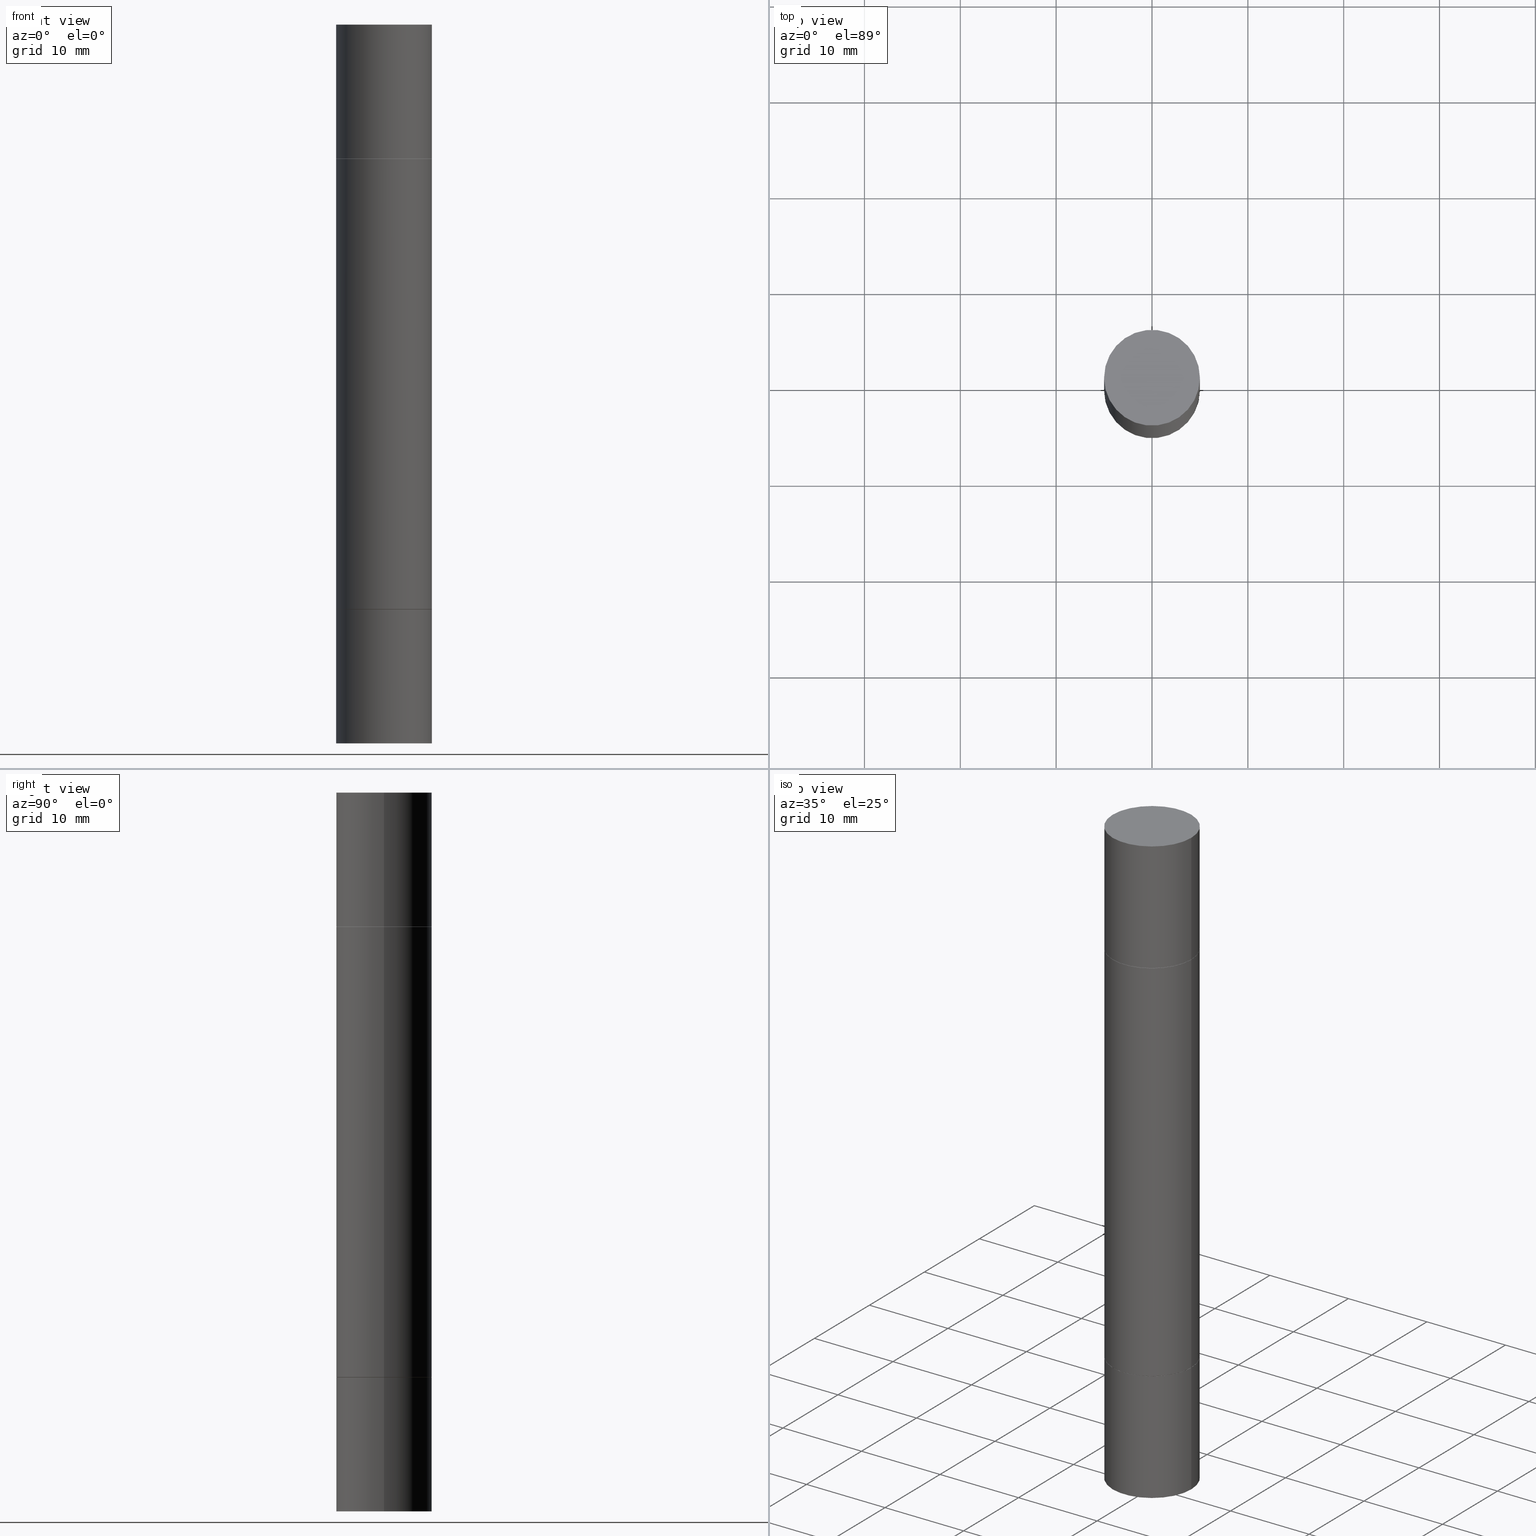
[diagram: canonical four-view strip — front | top / right | iso, engineering-drawing reading convention]
A machine part, canonical four-view strip (front | top / right | iso — engineering-drawing reading convention). The complete STEP part file that produces these views, byte-faithful:
ISO-10303-21;
HEADER;
FILE_DESCRIPTION (( 'STEP AP203' ),
    '1' );
FILE_NAME ('48939.STEP',
    '2024-03-04T15:49:58',
    ( '' ),
    ( '' ),
    'SwSTEP 2.0',
    'SolidWorks 2023',
    '' );
FILE_SCHEMA (( 'CONFIG_CONTROL_DESIGN' ));
ENDSEC;

DATA;
#1 = PERSON_AND_ORGANIZATION ( #326, #538 ) ;
#2 = CARTESIAN_POINT ( 'NONE',  ( -0.1968500000000000250, -3.804334017806689102E-15, -2.400599999999999401 ) ) ;
#3 = CIRCLE ( 'NONE', #662, 0.1958499999999999963 ) ;
#4 = CARTESIAN_POINT ( 'NONE',  ( 0.000000000000000000, 0.000000000000000000, 0.000000000000000000 ) ) ;
#5 = CC_DESIGN_APPROVAL ( #596, ( #411 ) ) ;
#6 = ORIENTED_EDGE ( 'NONE', *, *, #622, .F. ) ;
#7 = DIRECTION ( 'NONE',  ( 1.000000000000000000, -6.982962677686268288E-15, 0.000000000000000000 ) ) ;
#8 = EDGE_LOOP ( 'NONE', ( #426, #620, #380, #25 ) ) ;
#9 = ADVANCED_FACE ( 'NONE', ( #109 ), #433, .T. ) ;
#10 = ORIENTED_EDGE ( 'NONE', *, *, #574, .T. ) ;
#11 = CC_DESIGN_DATE_AND_TIME_ASSIGNMENT ( #98, #455, ( #108 ) ) ;
#12 = DIRECTION ( 'NONE',  ( 0.7071067811864267805, -2.468850131080992517E-15, 0.7071067811866682540 ) ) ;
#13 = VERTEX_POINT ( 'NONE', #647 ) ;
#14 = CARTESIAN_POINT ( 'NONE',  ( 0.1968500000000000250, -9.759737786468237294E-15, -2.401599999999999735 ) ) ;
#15 = CIRCLE ( 'NONE', #495, 0.1968500000000000250 ) ;
#16 = EDGE_LOOP ( 'NONE', ( #215, #457, #470, #19 ) ) ;
#17 = APPROVAL_PERSON_ORGANIZATION ( #1, #75, #44 ) ;
#18 = CARTESIAN_POINT ( 'NONE',  ( 5.873037884934223228E-29, -8.385141583365697263E-15, -2.401599999999999735 ) ) ;
#19 = ORIENTED_EDGE ( 'NONE', *, *, #303, .F. ) ;
#20 = PLANE ( 'NONE',  #473 ) ;
#21 = ORIENTED_EDGE ( 'NONE', *, *, #296, .T. ) ;
#22 = ORIENTED_EDGE ( 'NONE', *, *, #171, .T. ) ;
#23 = ORIENTED_EDGE ( 'NONE', *, *, #267, .F. ) ;
#24 = DIRECTION ( 'NONE',  ( 1.000000000000000000, -6.982962677686262766E-15, 0.000000000000000000 ) ) ;
#25 = ORIENTED_EDGE ( 'NONE', *, *, #365, .T. ) ;
#26 = CIRCLE ( 'NONE', #403, 0.1968500000000000250 ) ;
#27 = DIRECTION ( 'NONE',  ( 1.000000000000000000, -6.982962677686267499E-15, 0.000000000000000000 ) ) ;
#28 = ORIENTED_EDGE ( 'NONE', *, *, #613, .F. ) ;
#29 = PLANE ( 'NONE',  #315 ) ;
#30 = DIRECTION ( 'NONE',  ( -2.445468806185136597E-29, 3.491481338843145583E-15, 1.000000000000000000 ) ) ;
#31 = PLANE ( 'NONE',  #385 ) ;
#32 = ORIENTED_EDGE ( 'NONE', *, *, #242, .T. ) ;
#33 = DIRECTION ( 'NONE',  ( 2.445468806185136597E-29, 3.492890411551752677E-15, 1.000000000000000000 ) ) ;
#34 = CARTESIAN_POINT ( 'NONE',  ( 5.873037884934223228E-29, -1.923200839900334937E-15, -0.5511999999999992461 ) ) ;
#35 = CIRCLE ( 'NONE', #402, 0.1968500000000000250 ) ;
#36 = CC_DESIGN_APPROVAL ( #75, ( #48 ) ) ;
#37 = DIRECTION ( 'NONE',  ( 2.445468806185136597E-29, 3.492890411551752677E-15, 1.000000000000000000 ) ) ;
#38 = ADVANCED_FACE ( 'NONE', ( #476 ), #528, .T. ) ;
#39 = DIRECTION ( 'NONE',  ( -1.000000000000000000, 6.982962677686265922E-15, -9.839502134516470631E-33 ) ) ;
#40 = ORIENTED_EDGE ( 'NONE', *, *, #637, .T. ) ;
#41 = APPLICATION_PROTOCOL_DEFINITION ( 'international standard', 'config_control_design', 1994, #461 ) ;
#42 = CARTESIAN_POINT ( 'NONE',  ( -0.1968500000000000250, -5.762046994505618475E-16, -0.5521999999999996911 ) ) ;
#43 = PRODUCT_DEFINITION_SHAPE ( 'NONE', 'NONE',  #108 ) ;
#44 = APPROVAL_ROLE ( '' ) ;
#45 = CARTESIAN_POINT ( 'NONE',  ( 5.873037884934223228E-29, -1.923200839900334937E-15, -0.5511999999999992461 ) ) ;
#46 = VERTEX_POINT ( 'NONE', #259 ) ;
#47 = DIRECTION ( 'NONE',  ( -0.7071067811864267805, 7.493145998869918709E-15, 0.7071067811866682540 ) ) ;
#48 = PRODUCT_DEFINITION_FORMATION_WITH_SPECIFIED_SOURCE ( 'ANY', '', #554, .NOT_KNOWN. ) ;
#49 = CARTESIAN_POINT ( 'NONE',  ( 5.870592416128037625E-29, -8.381650102026854256E-15, -2.400599999999999401 ) ) ;
#50 = VERTEX_POINT ( 'NONE', #466 ) ;
#51 = CALENDAR_DATE ( 2024, 4, 3 ) ;
#52 = CARTESIAN_POINT ( 'NONE',  ( 0.1968499999999998307, -1.168632265538556411E-14, -2.952799999999998981 ) ) ;
#53 = VERTEX_POINT ( 'NONE', #310 ) ;
#54 = DIRECTION ( 'NONE',  ( 0.7071067811864267805, -7.407546758113824138E-15, -0.7071067811866682540 ) ) ;
#55 = CLOSED_SHELL ( 'NONE', ( #481, #464, #492, #432 ) ) ;
#56 = AXIS2_PLACEMENT_3D ( 'NONE', #639, #304, #207 ) ;
#57 = DIRECTION ( 'NONE',  ( -0.7071067811864267805, 2.381258160590016583E-15, -0.7071067811866682540 ) ) ;
#58 = DIRECTION ( 'NONE',  ( 1.000000000000000000, -6.982962677686267499E-15, 0.000000000000000000 ) ) ;
#59 = DIRECTION ( 'NONE',  ( 1.000000000000000000, -6.982962677686264344E-15, 0.000000000000000000 ) ) ;
#60 = CARTESIAN_POINT ( 'NONE',  ( 7.220980290903470182E-29, -1.030964609733603853E-14, -2.952799999999999869 ) ) ;
#61 = EDGE_LOOP ( 'NONE', ( #513, #22, #658, #649 ) ) ;
#62 = FACE_OUTER_BOUND ( 'NONE', #307, .T. ) ;
#63 = AXIS2_PLACEMENT_3D ( 'NONE', #133, #559, #499 ) ;
#64 = CARTESIAN_POINT ( 'NONE',  ( 0.000000000000000000, -1.031172645228302408E-14, -2.952799999999998981 ) ) ;
#65 = CIRCLE ( 'NONE', #421, 0.1968500000000000250 ) ;
#66 = DIRECTION ( 'NONE',  ( 1.000000000000000000, -6.982962677686262766E-15, 0.000000000000000000 ) ) ;
#67 = ORIENTED_EDGE ( 'NONE', *, *, #210, .T. ) ;
#68 = ORIENTED_EDGE ( 'NONE', *, *, #302, .F. ) ;
#69 = CARTESIAN_POINT ( 'NONE',  ( 0.000000000000000000, -1.031172645228302408E-14, -2.952799999999998981 ) ) ;
#70 = ORIENTED_EDGE ( 'NONE', *, *, #488, .T. ) ;
#71 = LINE ( 'NONE', #440, #245 ) ;
#72 = CARTESIAN_POINT ( 'NONE',  ( -0.1968500000000000250, -5.762046994505618475E-16, -0.5521999999999996911 ) ) ;
#73 = VECTOR ( 'NONE', #12, 39.37007874015748143 ) ;
#74 = AXIS2_PLACEMENT_3D ( 'NONE', #659, #279, #378 ) ;
#75 = APPROVAL ( #504, 'UNSPECIFIED' ) ;
#76 = CARTESIAN_POINT ( 'NONE',  ( 7.220980290903470182E-29, 2.080354946989631982E-18, 5.463695987328526437E-16 ) ) ;
#77 = DIRECTION ( 'NONE',  ( 2.438088387897959769E-29, 3.492890411551753071E-15, 1.000000000000000000 ) ) ;
#78 = VERTEX_POINT ( 'NONE', #262 ) ;
#79 = DIRECTION ( 'NONE',  ( 2.445468806185136597E-29, 3.492890411551752677E-15, 1.000000000000000000 ) ) ;
#80 = LINE ( 'NONE', #391, #291 ) ;
#81 = VERTEX_POINT ( 'NONE', #269 ) ;
#82 = DIRECTION ( 'NONE',  ( -2.445468806185136877E-29, -3.492890411551753071E-15, -1.000000000000000000 ) ) ;
#83 = EDGE_LOOP ( 'NONE', ( #40, #557 ) ) ;
#84 = CARTESIAN_POINT ( 'NONE',  ( 1.374596203102600181E-15, 0.1968499999999916150, -2.401600000000000623 ) ) ;
#85 = ADVANCED_FACE ( 'NONE', ( #240 ), #31, .F. ) ;
#86 = CIRCLE ( 'NONE', #63, 0.1968500000000000250 ) ;
#87 = LINE ( 'NONE', #555, #354 ) ;
#88 = DIRECTION ( 'NONE',  ( -2.445468806185136597E-29, -3.492890411551752677E-15, -1.000000000000000000 ) ) ;
#89 = CARTESIAN_POINT ( 'NONE',  ( 0.000000000000000000, 0.000000000000000000, 0.000000000000000000 ) ) ;
#90 = DIRECTION ( 'NONE',  ( 2.445468806185136597E-29, 3.492890411551752677E-15, 1.000000000000000000 ) ) ;
#91 = DIRECTION ( 'NONE',  ( 0.000000000000000000, 0.000000000000000000, 1.000000000000000000 ) ) ;
#92 = LINE ( 'NONE', #152, #441 ) ;
#93 = ORIENTED_EDGE ( 'NONE', *, *, #359, .T. ) ;
#94 = CIRCLE ( 'NONE', #212, 0.1968499999999998307 ) ;
#95 = PERSON_AND_ORGANIZATION ( #326, #538 ) ;
#96 = LOCAL_TIME ( 10, 49, 58.00000000000000000, #588 ) ;
#97 = CARTESIAN_POINT ( 'NONE',  ( 0.1968500000000000250, -1.372515848155552113E-15, 5.463695987328526437E-16 ) ) ;
#98 = DATE_AND_TIME ( #51, #317 ) ;
#99 = CARTESIAN_POINT ( 'NONE',  ( 0.000000000000000000, -1.031172645228302408E-14, -2.952799999999998981 ) ) ;
#100 = ADVANCED_FACE ( 'NONE', ( #280 ), #671, .T. ) ;
#101 = MECHANICAL_CONTEXT ( 'NONE', #472, 'mechanical' ) ;
#102 = LINE ( 'NONE', #142, #274 ) ;
#103 = AXIS2_PLACEMENT_3D ( 'NONE', #325, #130, #548 ) ;
#104 = CIRCLE ( 'NONE', #631, 0.1968500000000000250 ) ;
#105 = DIRECTION ( 'NONE',  ( 2.438088387897959769E-29, 3.492890411551753071E-15, 1.000000000000000000 ) ) ;
#106 = ORIENTED_EDGE ( 'NONE', *, *, #296, .F. ) ;
#107 = FACE_OUTER_BOUND ( 'NONE', #545, .T. ) ;
#108 = PRODUCT_DEFINITION ( 'UNKNOWN', '', #48, #182 ) ;
#109 = FACE_OUTER_BOUND ( 'NONE', #166, .T. ) ;
#110 = VERTEX_POINT ( 'NONE', #193 ) ;
#111 = DIRECTION ( 'NONE',  ( 2.438088387897959769E-29, 3.492890411551753071E-15, 1.000000000000000000 ) ) ;
#112 = ORIENTED_EDGE ( 'NONE', *, *, #531, .F. ) ;
#113 = VERTEX_POINT ( 'NONE', #448 ) ;
#114 = SHAPE_DEFINITION_REPRESENTATION ( #43, #364 ) ;
#115 = DIRECTION ( 'NONE',  ( 2.445468806185136597E-29, 3.492890411551752677E-15, 1.000000000000000000 ) ) ;
#116 = CIRCLE ( 'NONE', #284, 0.1968500000000000250 ) ;
#117 = VERTEX_POINT ( 'NONE', #42 ) ;
#118 = LOCAL_TIME ( 10, 49, 58.00000000000000000, #458 ) ;
#119 = ORIENTED_EDGE ( 'NONE', *, *, #624, .T. ) ;
#120 = CARTESIAN_POINT ( 'NONE',  ( 5.873037884934223228E-29, -8.385141583365697263E-15, -2.401599999999999735 ) ) ;
#121 = EDGE_LOOP ( 'NONE', ( #541, #170 ) ) ;
#122 = CARTESIAN_POINT ( 'NONE',  ( 7.220980290903470182E-29, -1.030964609733603853E-14, -2.952799999999999869 ) ) ;
#123 = DIRECTION ( 'NONE',  ( 2.438088387897959769E-29, 3.492890411551753071E-15, 1.000000000000000000 ) ) ;
#124 = CARTESIAN_POINT ( 'NONE',  ( 7.220980290903470182E-29, 2.080354946989631982E-18, 5.463695987328526437E-16 ) ) ;
#125 = DIRECTION ( 'NONE',  ( 1.000000000000000000, -6.982962677686265922E-15, 9.839502134516470631E-33 ) ) ;
#126 = CONICAL_SURFACE ( 'NONE', #616, 0.1958499999999999963, 0.7853981633972775267 ) ;
#127 = ORIENTED_EDGE ( 'NONE', *, *, #668, .F. ) ;
#128 = CIRCLE ( 'NONE', #196, 0.1958499999999999963 ) ;
#129 = DIRECTION ( 'NONE',  ( 1.000000000000000000, -6.982962677686267499E-15, 0.000000000000000000 ) ) ;
#130 = DIRECTION ( 'NONE',  ( 2.445468806185136597E-29, 3.492890411551752677E-15, 1.000000000000000000 ) ) ;
#131 = ORIENTED_EDGE ( 'NONE', *, *, #302, .T. ) ;
#132 = DIRECTION ( 'NONE',  ( -2.445468806185136597E-29, -3.492890411551752677E-15, -1.000000000000000000 ) ) ;
#133 = CARTESIAN_POINT ( 'NONE',  ( 5.870592416128037625E-29, -1.926693730311889446E-15, -0.5521999999999996911 ) ) ;
#134 = DIRECTION ( 'NONE',  ( -2.445468806185136877E-29, -3.492890411551753071E-15, -1.000000000000000000 ) ) ;
#135 = ADVANCED_FACE ( 'NONE', ( #185 ), #400, .T. ) ;
#136 = FACE_OUTER_BOUND ( 'NONE', #247, .T. ) ;
#137 = VECTOR ( 'NONE', #656, 39.37007874015748143 ) ;
#138 = LINE ( 'NONE', #501, #581 ) ;
#139 = CARTESIAN_POINT ( 'NONE',  ( 5.873037884934223228E-29, -8.385141583365697263E-15, -2.401599999999999735 ) ) ;
#140 = ADVANCED_FACE ( 'NONE', ( #231 ), #126, .T. ) ;
#141 = ORIENTED_EDGE ( 'NONE', *, *, #571, .F. ) ;
#142 = CARTESIAN_POINT ( 'NONE',  ( 0.1968500000000000250, -1.168632265538556569E-14, -2.952799999999998981 ) ) ;
#143 = ORIENTED_EDGE ( 'NONE', *, *, #227, .T. ) ;
#144 = CC_DESIGN_PERSON_AND_ORGANIZATION_ASSIGNMENT ( #399, #449, ( #411 ) ) ;
#145 = CALENDAR_DATE ( 2024, 4, 3 ) ;
#146 = DIRECTION ( 'NONE',  ( -2.445468806185136877E-29, -3.492890411551753071E-15, -1.000000000000000000 ) ) ;
#147 = ORIENTED_EDGE ( 'NONE', *, *, #171, .F. ) ;
#148 = ORIENTED_EDGE ( 'NONE', *, *, #229, .T. ) ;
#149 = CONICAL_SURFACE ( 'NONE', #328, 0.1958499999999999963, 0.7853981633972775267 ) ;
#150 = PERSON_AND_ORGANIZATION ( #326, #538 ) ;
#151 =( GEOMETRIC_REPRESENTATION_CONTEXT ( 3 ) GLOBAL_UNCERTAINTY_ASSIGNED_CONTEXT ( ( #503 ) ) GLOBAL_UNIT_ASSIGNED_CONTEXT ( ( #349, #507, #344 ) ) REPRESENTATION_CONTEXT ( 'NONE', 'WORKASPACE' ) );
#152 = CARTESIAN_POINT ( 'NONE',  ( -0.1958499999999999963, -5.795723070367805287E-16, -0.5511999999999992461 ) ) ;
#153 = FACE_OUTER_BOUND ( 'NONE', #594, .T. ) ;
#154 = EDGE_CURVE ( 'NONE', #46, #78, #301, .T. ) ;
#155 = CARTESIAN_POINT ( 'NONE',  ( 0.1968500000000000250, -1.168424230043858014E-14, -2.952799999999999869 ) ) ;
#156 = ADVANCED_FACE ( 'NONE', ( #657 ), #333, .T. ) ;
#157 = CLOSED_SHELL ( 'NONE', ( #655, #140, #339, #200, #386, #156 ) ) ;
#158 = AXIS2_PLACEMENT_3D ( 'NONE', #4, #408, #299 ) ;
#159 = FACE_OUTER_BOUND ( 'NONE', #314, .T. ) ;
#160 = AXIS2_PLACEMENT_3D ( 'NONE', #124, #664, #601 ) ;
#161 = ORIENTED_EDGE ( 'NONE', *, *, #424, .F. ) ;
#162 = DIRECTION ( 'NONE',  ( -2.445468806185136597E-29, 3.491481338843145583E-15, 1.000000000000000000 ) ) ;
#163 = VERTEX_POINT ( 'NONE', #72 ) ;
#164 = EDGE_LOOP ( 'NONE', ( #23, #188, #119, #68 ) ) ;
#165 = DIRECTION ( 'NONE',  ( 0.000000000000000000, 1.000000000000000000, -4.163344669033678790E-15 ) ) ;
#166 = EDGE_LOOP ( 'NONE', ( #638, #535, #266, #141 ) ) ;
#167 = CLOSED_SHELL ( 'NONE', ( #343, #38, #135, #85, #491, #420, #416, #462 ) ) ;
#168 = DIRECTION ( 'NONE',  ( 1.000000000000000000, -6.982962677686262766E-15, 0.000000000000000000 ) ) ;
#169 = VECTOR ( 'NONE', #54, 39.37007874015748143 ) ;
#170 = ORIENTED_EDGE ( 'NONE', *, *, #424, .T. ) ;
#171 = EDGE_CURVE ( 'NONE', #163, #543, #660, .T. ) ;
#172 = CARTESIAN_POINT ( 'NONE',  ( 0.1968499999999998307, -1.168632265538556411E-14, -2.952799999999998981 ) ) ;
#173 = EDGE_LOOP ( 'NONE', ( #225, #661, #127, #175 ) ) ;
#174 = CARTESIAN_POINT ( 'NONE',  ( 3.610490145451734531E-29, -5.154823048668018475E-15, -1.476399999999999491 ) ) ;
#175 = ORIENTED_EDGE ( 'NONE', *, *, #210, .F. ) ;
#176 = DIRECTION ( 'NONE',  ( -2.445468806185136597E-29, -3.492890411551752677E-15, -1.000000000000000000 ) ) ;
#177 = EDGE_CURVE ( 'NONE', #78, #81, #335, .T. ) ;
#178 = CARTESIAN_POINT ( 'NONE',  ( 5.870592416128037625E-29, -1.926693730311889446E-15, -0.5521999999999996911 ) ) ;
#179 = CARTESIAN_POINT ( 'NONE',  ( 0.1958499999999999963, -3.290814080325190531E-15, -0.5511999999999992461 ) ) ;
#180 = VECTOR ( 'NONE', #463, 39.37007874015748143 ) ;
#181 = CC_DESIGN_SECURITY_CLASSIFICATION ( #411, ( #48 ) ) ;
#182 = DESIGN_CONTEXT ( 'detailed design', #461, 'design' ) ;
#183 = FACE_OUTER_BOUND ( 'NONE', #61, .T. ) ;
#184 = ADVANCED_FACE ( 'NONE', ( #494 ), #228, .F. ) ;
#185 = FACE_OUTER_BOUND ( 'NONE', #164, .T. ) ;
#186 = FACE_OUTER_BOUND ( 'NONE', #238, .T. ) ;
#187 = CARTESIAN_POINT ( 'NONE',  ( 5.873037884934223228E-29, -1.923200839900334937E-15, -0.5511999999999992461 ) ) ;
#188 = ORIENTED_EDGE ( 'NONE', *, *, #361, .T. ) ;
#189 = CC_DESIGN_PERSON_AND_ORGANIZATION_ASSIGNMENT ( #95, #204, ( #108 ) ) ;
#190 = SECURITY_CLASSIFICATION_LEVEL ( 'unclassified' ) ;
#191 = ORIENTED_EDGE ( 'NONE', *, *, #177, .T. ) ;
#192 = ORIENTED_EDGE ( 'NONE', *, *, #414, .F. ) ;
#193 = CARTESIAN_POINT ( 'NONE',  ( -0.1968500000000000250, 3.899287883846529545E-16, 5.463695987328561936E-16 ) ) ;
#194 = VECTOR ( 'NONE', #603, 39.37007874015748143 ) ;
#195 = AXIS2_PLACEMENT_3D ( 'NONE', #376, #469, #415 ) ;
#196 = AXIS2_PLACEMENT_3D ( 'NONE', #331, #30, #24 ) ;
#197 = DIRECTION ( 'NONE',  ( 1.000000000000000000, -6.982962677686262766E-15, 0.000000000000000000 ) ) ;
#198 = APPROVAL_DATE_TIME ( #412, #429 ) ;
#199 = DIRECTION ( 'NONE',  ( 1.000000000000000000, -6.982962677686267499E-15, 0.000000000000000000 ) ) ;
#200 = ADVANCED_FACE ( 'NONE', ( #136 ), #275, .F. ) ;
#201 = CALENDAR_DATE ( 2024, 4, 3 ) ;
#202 = FACE_OUTER_BOUND ( 'NONE', #521, .T. ) ;
#203 = CONICAL_SURFACE ( 'NONE', #338, 0.1958499999999999963, 0.7853981633972775267 ) ;
#204 = PERSON_AND_ORGANIZATION_ROLE ( 'creator' ) ;
#205 = AXIS2_PLACEMENT_3D ( 'NONE', #286, #336, #230 ) ;
#206 = CARTESIAN_POINT ( 'NONE',  ( 5.870592416128037625E-29, -8.381650102026854256E-15, -2.400599999999999401 ) ) ;
#207 = DIRECTION ( 'NONE',  ( 1.000000000000000000, -6.982962677686267499E-15, 0.000000000000000000 ) ) ;
#208 = DIRECTION ( 'NONE',  ( -2.438088387897960049E-29, 3.491481338843145188E-15, 1.000000000000000000 ) ) ;
#209 = VERTEX_POINT ( 'NONE', #393 ) ;
#210 = EDGE_CURVE ( 'NONE', #423, #516, #80, .T. ) ;
#211 = AXIS2_PLACEMENT_3D ( 'NONE', #84, #612, #444 ) ;
#212 = AXIS2_PLACEMENT_3D ( 'NONE', #370, #260, #165 ) ;
#213 = CARTESIAN_POINT ( 'NONE',  ( -0.1958499999999999963, -5.778885032436711881E-16, -0.5511999999999992461 ) ) ;
#214 = CIRCLE ( 'NONE', #484, 0.1968500000000000250 ) ;
#215 = ORIENTED_EDGE ( 'NONE', *, *, #677, .F. ) ;
#216 = DIRECTION ( 'NONE',  ( -2.445468806185136597E-29, -3.492890411551752677E-15, -1.000000000000000000 ) ) ;
#217 = CARTESIAN_POINT ( 'NONE',  ( 0.000000000000000000, -1.031172645228302408E-14, -2.952799999999998981 ) ) ;
#218 = EDGE_CURVE ( 'NONE', #467, #382, #650, .T. ) ;
#219 = DIRECTION ( 'NONE',  ( 1.000000000000000000, -6.982962677686267499E-15, 0.000000000000000000 ) ) ;
#220 = ORIENTED_EDGE ( 'NONE', *, *, #241, .T. ) ;
#221 = AXIS2_PLACEMENT_3D ( 'NONE', #383, #123, #39 ) ;
#222 = DIRECTION ( 'NONE',  ( 0.000000000000000000, 1.000000000000000000, -4.163344669033678790E-15 ) ) ;
#223 = ADVANCED_FACE ( 'NONE', ( #435 ), #29, .F. ) ;
#224 = CIRCLE ( 'NONE', #509, 0.1968500000000000250 ) ;
#225 = ORIENTED_EDGE ( 'NONE', *, *, #479, .T. ) ;
#226 = CARTESIAN_POINT ( 'NONE',  ( -0.1968500000000000250, -7.948690465007109319E-15, -2.401599999999999735 ) ) ;
#227 = EDGE_CURVE ( 'NONE', #110, #382, #287, .T. ) ;
#228 = PLANE ( 'NONE',  #211 ) ;
#229 = EDGE_CURVE ( 'NONE', #163, #81, #86, .T. ) ;
#230 = DIRECTION ( 'NONE',  ( 1.000000000000000000, -6.982962677686265922E-15, 4.876176775795935793E-29 ) ) ;
#231 = FACE_OUTER_BOUND ( 'NONE', #374, .T. ) ;
#232 = DIRECTION ( 'NONE',  ( 1.000000000000000000, -6.982962677686265922E-15, 0.000000000000000000 ) ) ;
#233 = CARTESIAN_POINT ( 'NONE',  ( -0.1968500000000000250, -8.961237421421697861E-15, -2.952799999999998981 ) ) ;
#234 = AXIS2_PLACEMENT_3D ( 'NONE', #99, #512, #250 ) ;
#235 = CIRCLE ( 'NONE', #663, 0.1968500000000000250 ) ;
#236 = DIRECTION ( 'NONE',  ( 1.000000000000000000, -6.982962677686267499E-15, 0.000000000000000000 ) ) ;
#237 = DIRECTION ( 'NONE',  ( 1.000000000000000000, -6.982962677686268288E-15, 0.000000000000000000 ) ) ;
#238 = EDGE_LOOP ( 'NONE', ( #670, #318 ) ) ;
#239 = PERSON_AND_ORGANIZATION ( #326, #538 ) ;
#240 = FACE_OUTER_BOUND ( 'NONE', #278, .T. ) ;
#241 = EDGE_CURVE ( 'NONE', #117, #281, #405, .T. ) ;
#242 = EDGE_CURVE ( 'NONE', #81, #438, #255, .T. ) ;
#243 = PLANE ( 'NONE',  #451 ) ;
#244 = CONICAL_SURFACE ( 'NONE', #410, 0.1958499999999999963, 0.7853981633972775267 ) ;
#245 = VECTOR ( 'NONE', #82, 39.37007874015748143 ) ;
#246 = DIRECTION ( 'NONE',  ( -2.445468806185136597E-29, -3.492890411551752677E-15, -1.000000000000000000 ) ) ;
#247 = EDGE_LOOP ( 'NONE', ( #21, #584 ) ) ;
#248 = APPLICATION_PROTOCOL_DEFINITION ( 'international standard', 'config_control_design', 1994, #472 ) ;
#249 = DIRECTION ( 'NONE',  ( 1.000000000000000000, -6.982962677686268288E-15, 0.000000000000000000 ) ) ;
#250 = DIRECTION ( 'NONE',  ( 1.000000000000000000, -6.982962677686267499E-15, 0.000000000000000000 ) ) ;
#251 = CLOSED_SHELL ( 'NONE', ( #9, #100, #223, #254 ) ) ;
#252 = AXIS2_PLACEMENT_3D ( 'NONE', #60, #162, #219 ) ;
#253 = VERTEX_POINT ( 'NONE', #401 ) ;
#254 = ADVANCED_FACE ( 'NONE', ( #578 ), #413, .T. ) ;
#255 = LINE ( 'NONE', #52, #180 ) ;
#256 = EDGE_LOOP ( 'NONE', ( #482, #106, #191, #10 ) ) ;
#257 = APPROVAL_ROLE ( '' ) ;
#258 = DIRECTION ( 'NONE',  ( 2.445468806185136597E-29, 3.492890411551752677E-15, 1.000000000000000000 ) ) ;
#259 = CARTESIAN_POINT ( 'NONE',  ( -0.1958499999999999963, -5.778885032436711881E-16, -0.5511999999999992461 ) ) ;
#260 = DIRECTION ( 'NONE',  ( -0.000000000000000000, -3.492185875197449130E-15, -1.000000000000000000 ) ) ;
#261 = EDGE_LOOP ( 'NONE', ( #645, #220, #640, #112 ) ) ;
#262 = CARTESIAN_POINT ( 'NONE',  ( 0.1958499999999999963, -3.290814080325190531E-15, -0.5511999999999992461 ) ) ;
#263 = CIRCLE ( 'NONE', #388, 0.1968500000000000250 ) ;
#264 = DIRECTION ( 'NONE',  ( -2.445468806185136597E-29, 3.491481338843145583E-15, 1.000000000000000000 ) ) ;
#265 = CIRCLE ( 'NONE', #651, 0.1958499999999999963 ) ;
#266 = ORIENTED_EDGE ( 'NONE', *, *, #582, .T. ) ;
#267 = EDGE_CURVE ( 'NONE', #428, #253, #580, .T. ) ;
#268 = FACE_OUTER_BOUND ( 'NONE', #16, .T. ) ;
#269 = CARTESIAN_POINT ( 'NONE',  ( 0.1968500000000000250, -3.301289933414429871E-15, -0.5521999999999996911 ) ) ;
#270 = CARTESIAN_POINT ( 'NONE',  ( 0.1968500000000000250, -3.297797043002877729E-15, -0.5511999999999995792 ) ) ;
#271 = ORIENTED_EDGE ( 'NONE', *, *, #227, .F. ) ;
#272 = AXIS2_PLACEMENT_3D ( 'NONE', #667, #176, #397 ) ;
#273 = LINE ( 'NONE', #606, #137 ) ;
#274 = VECTOR ( 'NONE', #630, 39.37007874015748143 ) ;
#275 = PLANE ( 'NONE',  #604 ) ;
#276 = DIRECTION ( 'NONE',  ( -2.445468806185136597E-29, 3.491481338843145583E-15, 1.000000000000000000 ) ) ;
#277 = DIRECTION ( 'NONE',  ( -1.000000000000000000, 6.982962677686265922E-15, -9.839502134516470631E-33 ) ) ;
#278 = EDGE_LOOP ( 'NONE', ( #398, #653 ) ) ;
#279 = DIRECTION ( 'NONE',  ( 2.438088387897960049E-29, -3.491481338843145188E-15, -1.000000000000000000 ) ) ;
#280 = FACE_OUTER_BOUND ( 'NONE', #83, .T. ) ;
#281 = VERTEX_POINT ( 'NONE', #2 ) ;
#282 = DIRECTION ( 'NONE',  ( -0.000000000000000000, -3.492185875197449130E-15, -1.000000000000000000 ) ) ;
#283 = DIRECTION ( 'NONE',  ( 1.000000000000000000, -6.982962677686265922E-15, 9.839502134516470631E-33 ) ) ;
#284 = AXIS2_PLACEMENT_3D ( 'NONE', #565, #90, #199 ) ;
#285 = CIRCLE ( 'NONE', #430, 0.1968500000000000250 ) ;
#286 = CARTESIAN_POINT ( 'NONE',  ( 0.000000000000000000, 0.000000000000000000, 0.000000000000000000 ) ) ;
#287 = LINE ( 'NONE', #233, #537 ) ;
#288 = FACE_OUTER_BOUND ( 'NONE', #256, .T. ) ;
#289 = PERSON_AND_ORGANIZATION ( #326, #538 ) ;
#290 = CARTESIAN_POINT ( 'NONE',  ( 5.873037884934223228E-29, -1.923200839900334937E-15, -0.5511999999999992461 ) ) ;
#291 = VECTOR ( 'NONE', #562, 39.37007874015748143 ) ;
#292 = VECTOR ( 'NONE', #146, 39.37007874015748143 ) ;
#293 = LENGTH_MEASURE_WITH_UNIT ( LENGTH_MEASURE( 0.02539999999999999897 ), #625 );
#294 = VERTEX_POINT ( 'NONE', #347 ) ;
#295 = DIRECTION ( 'NONE',  ( -2.445468806185136597E-29, 3.491481338843145583E-15, 1.000000000000000000 ) ) ;
#296 = EDGE_CURVE ( 'NONE', #78, #46, #617, .T. ) ;
#297 = ORIENTED_EDGE ( 'NONE', *, *, #668, .T. ) ;
#298 = PERSON_AND_ORGANIZATION ( #326, #538 ) ;
#299 = DIRECTION ( 'NONE',  ( 1.000000000000000000, -6.982962677686265922E-15, 4.876176775795935793E-29 ) ) ;
#300 = DIRECTION ( 'NONE',  ( -2.445468806185136877E-29, -3.492890411551753071E-15, -1.000000000000000000 ) ) ;
#301 = CIRCLE ( 'NONE', #103, 0.1958499999999999963 ) ;
#302 = EDGE_CURVE ( 'NONE', #253, #113, #356, .T. ) ;
#303 = EDGE_CURVE ( 'NONE', #281, #13, #35, .T. ) ;
#304 = DIRECTION ( 'NONE',  ( -2.445468806185136597E-29, -3.492890411551752677E-15, -1.000000000000000000 ) ) ;
#305 = DIRECTION ( 'NONE',  ( -2.445468806185136597E-29, -3.492890411551752677E-15, -1.000000000000000000 ) ) ;
#306 = ORIENTED_EDGE ( 'NONE', *, *, #615, .T. ) ;
#307 = EDGE_LOOP ( 'NONE', ( #585, #379, #608, #478 ) ) ;
#308 = APPROVAL_DATE_TIME ( #642, #596 ) ;
#309 = DIRECTION ( 'NONE',  ( -1.000000000000000000, 6.982962677686265922E-15, -9.839502134516470631E-33 ) ) ;
#310 = CARTESIAN_POINT ( 'NONE',  ( -0.1958499999999999963, -6.988245181031318870E-15, -2.401599999999999735 ) ) ;
#311 = EDGE_CURVE ( 'NONE', #13, #281, #15, .T. ) ;
#312 = PLANE ( 'NONE',  #375 ) ;
#313 = ADVANCED_FACE ( 'NONE', ( #202 ), #404, .T. ) ;
#314 = EDGE_LOOP ( 'NONE', ( #161, #143, #602, #577 ) ) ;
#315 = AXIS2_PLACEMENT_3D ( 'NONE', #553, #77, #277 ) ;
#316 = CYLINDRICAL_SURFACE ( 'NONE', #591, 0.1968500000000000250 ) ;
#317 = LOCAL_TIME ( 10, 49, 58.00000000000000000, #446 ) ;
#318 = ORIENTED_EDGE ( 'NONE', *, *, #615, .F. ) ;
#319 = DIRECTION ( 'NONE',  ( -2.445468806185136597E-29, -3.492890411551752677E-15, -1.000000000000000000 ) ) ;
#320 = EDGE_CURVE ( 'NONE', #680, #523, #621, .T. ) ;
#321 = PLANE ( 'NONE',  #605 ) ;
#322 = ORIENTED_EDGE ( 'NONE', *, *, #518, .T. ) ;
#323 = ORIENTED_EDGE ( 'NONE', *, *, #677, .T. ) ;
#324 = FACE_OUTER_BOUND ( 'NONE', #173, .T. ) ;
#325 = CARTESIAN_POINT ( 'NONE',  ( 5.873037884934223228E-29, -1.923200839900334937E-15, -0.5511999999999992461 ) ) ;
#326 = PERSON ( 'UNSPECIFIED', 'UNSPECIFIED', 'UNSPECIFIED', ('UNSPECIFIED'), ('UNSPECIFIED'), ('UNSPECIFIED') ) ;
#327 = DIRECTION ( 'NONE',  ( 2.445468806185136597E-29, 3.492890411551752677E-15, 1.000000000000000000 ) ) ;
#328 = AXIS2_PLACEMENT_3D ( 'NONE', #422, #264, #583 ) ;
#329 = AXIS2_PLACEMENT_3D ( 'NONE', #558, #443, #666 ) ;
#330 = CARTESIAN_POINT ( 'NONE',  ( 5.873037884934223228E-29, -1.923200839900336120E-15, -0.5511999999999995792 ) ) ;
#331 = CARTESIAN_POINT ( 'NONE',  ( 5.873037884934223228E-29, -8.385141583365697263E-15, -2.401599999999999735 ) ) ;
#332 = EDGE_LOOP ( 'NONE', ( #453, #341 ) ) ;
#333 = CYLINDRICAL_SURFACE ( 'NONE', #272, 0.1968499999999998307 ) ;
#334 = CYLINDRICAL_SURFACE ( 'NONE', #205, 0.1968500000000000250 ) ;
#335 = LINE ( 'NONE', #179, #672 ) ;
#336 = DIRECTION ( 'NONE',  ( -2.445468806185136597E-29, 3.491481338843145583E-15, 1.000000000000000000 ) ) ;
#337 = DIRECTION ( 'NONE',  ( 0.7071067811864267805, -7.407546758113824138E-15, -0.7071067811866682540 ) ) ;
#338 = AXIS2_PLACEMENT_3D ( 'NONE', #290, #246, #626 ) ;
#339 = ADVANCED_FACE ( 'NONE', ( #623 ), #243, .F. ) ;
#340 = APPROVAL_ROLE ( '' ) ;
#341 = ORIENTED_EDGE ( 'NONE', *, *, #439, .F. ) ;
#342 = DIRECTION ( 'NONE',  ( 1.000000000000000000, -6.982962677686267499E-15, 0.000000000000000000 ) ) ;
#343 = ADVANCED_FACE ( 'NONE', ( #153 ), #244, .T. ) ;
#344 =( NAMED_UNIT ( * ) SI_UNIT ( $, .STERADIAN. ) SOLID_ANGLE_UNIT ( ) );
#345 = DIMENSIONAL_EXPONENTS ( 1.000000000000000000, 0.000000000000000000, 0.000000000000000000, 0.000000000000000000, 0.000000000000000000, 0.000000000000000000, 0.000000000000000000 ) ;
#346 = EDGE_CURVE ( 'NONE', #113, #117, #104, .T. ) ;
#347 = CARTESIAN_POINT ( 'NONE',  ( 0.1968500000000000250, -1.372515848155552113E-15, 5.463695987328526437E-16 ) ) ;
#348 = MANIFOLD_SOLID_BREP ( 'Mirror1[1]', #157 ) ;
#349 =( CONVERSION_BASED_UNIT ( 'INCH', #293 ) LENGTH_UNIT ( ) NAMED_UNIT ( #345 ) );
#350 = CARTESIAN_POINT ( 'NONE',  ( 0.1958499999999999963, -3.290814080325190531E-15, -0.5511999999999992461 ) ) ;
#351 = MANIFOLD_SOLID_BREP ( 'Combine1', #167 ) ;
#352 = ORIENTED_EDGE ( 'NONE', *, *, #574, .F. ) ;
#353 = AXIS2_PLACEMENT_3D ( 'NONE', #330, #556, #487 ) ;
#354 = VECTOR ( 'NONE', #599, 39.37007874015748143 ) ;
#355 = PERSON_AND_ORGANIZATION_ROLE ( 'creator' ) ;
#356 = LINE ( 'NONE', #350, #169 ) ;
#357 = CC_DESIGN_DATE_AND_TIME_ASSIGNMENT ( #618, #468, ( #411 ) ) ;
#358 = MANIFOLD_SOLID_BREP ( 'Body-Move/Copy2[1]', #629 ) ;
#359 = EDGE_CURVE ( 'NONE', #389, #467, #102, .T. ) ;
#360 = DIRECTION ( 'NONE',  ( 2.445468806185136597E-29, 3.492890411551752677E-15, 1.000000000000000000 ) ) ;
#361 = EDGE_CURVE ( 'NONE', #428, #117, #92, .T. ) ;
#362 = APPROVAL_STATUS ( 'not_yet_approved' ) ;
#363 = CARTESIAN_POINT ( 'NONE',  ( 5.873037884934223228E-29, -8.385141583365697263E-15, -2.401599999999999735 ) ) ;
#364 = ADVANCED_BREP_SHAPE_REPRESENTATION ( '48939', ( #358, #348, #575, #598, #351, #675 ), #151 ) ;
#365 = EDGE_CURVE ( 'NONE', #50, #523, #116, .T. ) ;
#366 = APPROVAL_PERSON_ORGANIZATION ( #239, #429, #340 ) ;
#367 = PERSON_AND_ORGANIZATION ( #326, #538 ) ;
#368 = DIRECTION ( 'NONE',  ( 1.000000000000000000, -6.982962677686264344E-15, 0.000000000000000000 ) ) ;
#369 = ORIENTED_EDGE ( 'NONE', *, *, #486, .F. ) ;
#370 = CARTESIAN_POINT ( 'NONE',  ( 3.610490145451734531E-29, -5.154823048668018475E-15, -1.476399999999999491 ) ) ;
#371 = ORIENTED_EDGE ( 'NONE', *, *, #218, .F. ) ;
#372 = EDGE_LOOP ( 'NONE', ( #297, #517 ) ) ;
#373 = DIRECTION ( 'NONE',  ( 1.000000000000000000, -6.982962677686265922E-15, 4.876176775795935793E-29 ) ) ;
#374 = EDGE_LOOP ( 'NONE', ( #394, #322, #148, #547 ) ) ;
#375 = AXIS2_PLACEMENT_3D ( 'NONE', #480, #111, #309 ) ;
#376 = CARTESIAN_POINT ( 'NONE',  ( 5.873037884934223228E-29, -1.923200839900334937E-15, -0.5511999999999992461 ) ) ;
#377 = ORIENTED_EDGE ( 'NONE', *, *, #527, .T. ) ;
#378 = DIRECTION ( 'NONE',  ( -1.000000000000000000, 6.982962677686265922E-15, -4.876176775795935793E-29 ) ) ;
#379 = ORIENTED_EDGE ( 'NONE', *, *, #346, .F. ) ;
#380 = ORIENTED_EDGE ( 'NONE', *, *, #571, .T. ) ;
#381 = PLANE ( 'NONE',  #74 ) ;
#382 = VERTEX_POINT ( 'NONE', #573 ) ;
#383 = CARTESIAN_POINT ( 'NONE',  ( 1.374596203102613789E-15, 0.1968500000000000250, -5.463695987328526437E-16 ) ) ;
#384 = CC_DESIGN_PERSON_AND_ORGANIZATION_ASSIGNMENT ( #298, #634, ( #48 ) ) ;
#385 = AXIS2_PLACEMENT_3D ( 'NONE', #187, #502, #283 ) ;
#386 = ADVANCED_FACE ( 'NONE', ( #288 ), #203, .T. ) ;
#387 = DIRECTION ( 'NONE',  ( 2.445468806185136597E-29, 3.492890411551752677E-15, 1.000000000000000000 ) ) ;
#388 = AXIS2_PLACEMENT_3D ( 'NONE', #533, #115, #58 ) ;
#389 = VERTEX_POINT ( 'NONE', #97 ) ;
#390 = LOCAL_TIME ( 10, 49, 58.00000000000000000, #572 ) ;
#391 = CARTESIAN_POINT ( 'NONE',  ( 0.1968500000000000250, -1.374596203102541608E-15, 9.598753983154300858E-30 ) ) ;
#392 = CYLINDRICAL_SURFACE ( 'NONE', #550, 0.1968499999999998307 ) ;
#393 = CARTESIAN_POINT ( 'NONE',  ( -0.1968500000000000250, -7.948690465007109319E-15, -2.952799999999999869 ) ) ;
#394 = ORIENTED_EDGE ( 'NONE', *, *, #154, .F. ) ;
#395 = ORIENTED_EDGE ( 'NONE', *, *, #447, .F. ) ;
#396 = CARTESIAN_POINT ( 'NONE',  ( 0.1958499999999999963, -9.752754823790552857E-15, -2.401599999999999735 ) ) ;
#397 = DIRECTION ( 'NONE',  ( 1.000000000000000000, -6.982962677686264344E-15, 0.000000000000000000 ) ) ;
#398 = ORIENTED_EDGE ( 'NONE', *, *, #552, .T. ) ;
#399 = PERSON_AND_ORGANIZATION ( #326, #538 ) ;
#400 = CONICAL_SURFACE ( 'NONE', #536, 0.1958499999999999963, 0.7853981633972775267 ) ;
#401 = CARTESIAN_POINT ( 'NONE',  ( 0.1958499999999999963, -3.290814080325190531E-15, -0.5511999999999992461 ) ) ;
#402 = AXIS2_PLACEMENT_3D ( 'NONE', #49, #566, #197 ) ;
#403 = AXIS2_PLACEMENT_3D ( 'NONE', #489, #327, #551 ) ;
#404 = CYLINDRICAL_SURFACE ( 'NONE', #158, 0.1968500000000000250 ) ;
#405 = LINE ( 'NONE', #519, #292 ) ;
#406 = ORIENTED_EDGE ( 'NONE', *, *, #311, .F. ) ;
#407 = APPROVAL_DATE_TIME ( #514, #75 ) ;
#408 = DIRECTION ( 'NONE',  ( -2.445468806185136597E-29, 3.491481338843145583E-15, 1.000000000000000000 ) ) ;
#409 = CC_DESIGN_PERSON_AND_ORGANIZATION_ASSIGNMENT ( #289, #576, ( #554 ) ) ;
#410 = AXIS2_PLACEMENT_3D ( 'NONE', #139, #295, #508 ) ;
#411 = SECURITY_CLASSIFICATION ( '', '', #190 ) ;
#412 = DATE_AND_TIME ( #145, #632 ) ;
#413 = CYLINDRICAL_SURFACE ( 'NONE', #234, 0.1968500000000000250 ) ;
#414 = EDGE_CURVE ( 'NONE', #382, #467, #263, .T. ) ;
#415 = DIRECTION ( 'NONE',  ( 1.000000000000000000, -6.982962677686268288E-15, 0.000000000000000000 ) ) ;
#416 = ADVANCED_FACE ( 'NONE', ( #268 ), #149, .T. ) ;
#417 = FACE_OUTER_BOUND ( 'NONE', #121, .T. ) ;
#418 = ORIENTED_EDGE ( 'NONE', *, *, #365, .F. ) ;
#419 = AXIS2_PLACEMENT_3D ( 'NONE', #217, #319, #59 ) ;
#420 = ADVANCED_FACE ( 'NONE', ( #62 ), #542, .T. ) ;
#421 = AXIS2_PLACEMENT_3D ( 'NONE', #561, #37, #27 ) ;
#422 = CARTESIAN_POINT ( 'NONE',  ( 5.873037884934223228E-29, -8.385141583365697263E-15, -2.401599999999999735 ) ) ;
#423 = VERTEX_POINT ( 'NONE', #155 ) ;
#424 = EDGE_CURVE ( 'NONE', #110, #389, #560, .T. ) ;
#425 = DIRECTION ( 'NONE',  ( 1.000000000000000000, -6.982962677686267499E-15, 0.000000000000000000 ) ) ;
#426 = ORIENTED_EDGE ( 'NONE', *, *, #320, .F. ) ;
#427 = DIRECTION ( 'NONE',  ( -2.445468806185136597E-29, -3.492890411551752677E-15, -1.000000000000000000 ) ) ;
#428 = VERTEX_POINT ( 'NONE', #213 ) ;
#429 = APPROVAL ( #678, 'UNSPECIFIED' ) ;
#430 = AXIS2_PLACEMENT_3D ( 'NONE', #178, #387, #129 ) ;
#431 = DIRECTION ( 'NONE',  ( 1.000000000000000000, -6.982962677686268288E-15, 0.000000000000000000 ) ) ;
#432 = ADVANCED_FACE ( 'NONE', ( #646 ), #316, .T. ) ;
#433 = CYLINDRICAL_SURFACE ( 'NONE', #520, 0.1968500000000000250 ) ;
#434 = LINE ( 'NONE', #172, #510 ) ;
#435 = FACE_OUTER_BOUND ( 'NONE', #530, .T. ) ;
#436 = DIRECTION ( 'NONE',  ( 1.000000000000000000, -6.982962677686265922E-15, 0.000000000000000000 ) ) ;
#437 = DIRECTION ( 'NONE',  ( 1.000000000000000000, -6.982962677686268288E-15, 0.000000000000000000 ) ) ;
#438 = VERTEX_POINT ( 'NONE', #475 ) ;
#439 = EDGE_CURVE ( 'NONE', #53, #669, #3, .T. ) ;
#440 = CARTESIAN_POINT ( 'NONE',  ( 0.1968500000000000250, -1.168632265538556569E-14, -2.952799999999998981 ) ) ;
#441 = VECTOR ( 'NONE', #57, 39.37007874015748143 ) ;
#442 = DIRECTION ( 'NONE',  ( -2.438088387897959769E-29, -3.492890411551753071E-15, -1.000000000000000000 ) ) ;
#443 = DIRECTION ( 'NONE',  ( -2.445468806185136597E-29, 3.491481338843145583E-15, 1.000000000000000000 ) ) ;
#444 = DIRECTION ( 'NONE',  ( -1.000000000000000000, 6.982962677686265922E-15, -4.876176775795935793E-29 ) ) ;
#445 = ORIENTED_EDGE ( 'NONE', *, *, #525, .T. ) ;
#446 = COORDINATED_UNIVERSAL_TIME_OFFSET ( 5, 0, .BEHIND. ) ;
#447 = EDGE_CURVE ( 'NONE', #669, #13, #526, .T. ) ;
#448 = CARTESIAN_POINT ( 'NONE',  ( 0.1968500000000000250, -3.301289933414429871E-15, -0.5521999999999996911 ) ) ;
#449 = PERSON_AND_ORGANIZATION_ROLE ( 'classification_officer' ) ;
#450 = DIRECTION ( 'NONE',  ( 0.000000000000000000, 3.492185875197449524E-15, 1.000000000000000000 ) ) ;
#451 = AXIS2_PLACEMENT_3D ( 'NONE', #635, #450, #505 ) ;
#452 = AXIS2_PLACEMENT_3D ( 'NONE', #122, #276, #236 ) ;
#453 = ORIENTED_EDGE ( 'NONE', *, *, #525, .F. ) ;
#454 = CARTESIAN_POINT ( 'NONE',  ( 5.870592416128037625E-29, -1.926693730311889446E-15, -0.5521999999999996911 ) ) ;
#455 = DATE_TIME_ROLE ( 'creation_date' ) ;
#456 = DIRECTION ( 'NONE',  ( 1.000000000000000000, -6.982962677686262766E-15, 0.000000000000000000 ) ) ;
#457 = ORIENTED_EDGE ( 'NONE', *, *, #439, .T. ) ;
#458 = COORDINATED_UNIVERSAL_TIME_OFFSET ( 5, 0, .BEHIND. ) ;
#459 = DIRECTION ( 'NONE',  ( -2.445468806185136597E-29, 3.491481338843145583E-15, 1.000000000000000000 ) ) ;
#460 = AXIS2_PLACEMENT_3D ( 'NONE', #676, #679, #7 ) ;
#461 = APPLICATION_CONTEXT ( 'configuration controlled 3d designs of mechanical parts and assemblies' ) ;
#462 = ADVANCED_FACE ( 'NONE', ( #477 ), #20, .F. ) ;
#463 = DIRECTION ( 'NONE',  ( -2.445468806185136877E-29, -3.492890411551753071E-15, -1.000000000000000000 ) ) ;
#464 = ADVANCED_FACE ( 'NONE', ( #417 ), #312, .T. ) ;
#465 = DIRECTION ( 'NONE',  ( 1.000000000000000000, -6.982962677686265922E-15, 0.000000000000000000 ) ) ;
#466 = CARTESIAN_POINT ( 'NONE',  ( 0.1968500000000000250, -3.297797043002877729E-15, -0.5511999999999995792 ) ) ;
#467 = VERTEX_POINT ( 'NONE', #270 ) ;
#468 = DATE_TIME_ROLE ( 'classification_date' ) ;
#469 = DIRECTION ( 'NONE',  ( -2.445468806185136597E-29, -3.492890411551752677E-15, -1.000000000000000000 ) ) ;
#470 = ORIENTED_EDGE ( 'NONE', *, *, #447, .T. ) ;
#471 = ORIENTED_EDGE ( 'NONE', *, *, #488, .F. ) ;
#472 = APPLICATION_CONTEXT ( 'configuration controlled 3d designs of mechanical parts and assemblies' ) ;
#473 = AXIS2_PLACEMENT_3D ( 'NONE', #120, #208, #373 ) ;
#474 = CC_DESIGN_APPROVAL ( #429, ( #108 ) ) ;
#475 = CARTESIAN_POINT ( 'NONE',  ( 0.1968499999999998307, -4.915354592592491624E-15, -1.476399999999999491 ) ) ;
#476 = FACE_OUTER_BOUND ( 'NONE', #261, .T. ) ;
#477 = FACE_OUTER_BOUND ( 'NONE', #332, .T. ) ;
#478 = ORIENTED_EDGE ( 'NONE', *, *, #311, .T. ) ;
#479 = EDGE_CURVE ( 'NONE', #423, #209, #483, .T. ) ;
#480 = CARTESIAN_POINT ( 'NONE',  ( 1.374596203102613789E-15, 0.1968500000000000250, -5.463695987328526437E-16 ) ) ;
#481 = ADVANCED_FACE ( 'NONE', ( #159 ), #648, .T. ) ;
#482 = ORIENTED_EDGE ( 'NONE', *, *, #518, .F. ) ;
#483 = CIRCLE ( 'NONE', #252, 0.1968500000000000250 ) ;
#484 = AXIS2_PLACEMENT_3D ( 'NONE', #493, #33, #232 ) ;
#485 = CARTESIAN_POINT ( 'NONE',  ( -0.1968500000000000250, 3.899287883846532010E-16, -0.5511999999999995792 ) ) ;
#486 = EDGE_CURVE ( 'NONE', #587, #516, #224, .T. ) ;
#487 = DIRECTION ( 'NONE',  ( 1.000000000000000000, -6.982962677686267499E-15, 0.000000000000000000 ) ) ;
#488 = EDGE_CURVE ( 'NONE', #543, #438, #94, .T. ) ;
#489 = CARTESIAN_POINT ( 'NONE',  ( 5.873037884934223228E-29, -1.923200839900336120E-15, -0.5511999999999995792 ) ) ;
#490 = CARTESIAN_POINT ( 'NONE',  ( 5.873037884934223228E-29, -1.923200839900334937E-15, -0.5511999999999992461 ) ) ;
#491 = ADVANCED_FACE ( 'NONE', ( #107 ), #522, .T. ) ;
#492 = ADVANCED_FACE ( 'NONE', ( #589 ), #321, .F. ) ;
#493 = CARTESIAN_POINT ( 'NONE',  ( 7.220980290903470182E-29, 2.080354946989631982E-18, 5.463695987328526437E-16 ) ) ;
#494 = FACE_OUTER_BOUND ( 'NONE', #372, .T. ) ;
#495 = AXIS2_PLACEMENT_3D ( 'NONE', #206, #459, #456 ) ;
#496 = DIRECTION ( 'NONE',  ( 1.000000000000000000, -6.982962677686264344E-15, 0.000000000000000000 ) ) ;
#497 = AXIS2_PLACEMENT_3D ( 'NONE', #586, #258, #465 ) ;
#498 = APPROVAL_PERSON_ORGANIZATION ( #367, #596, #257 ) ;
#499 = DIRECTION ( 'NONE',  ( 1.000000000000000000, -6.982962677686267499E-15, 0.000000000000000000 ) ) ;
#500 = ORIENTED_EDGE ( 'NONE', *, *, #218, .T. ) ;
#501 = CARTESIAN_POINT ( 'NONE',  ( -0.1958499999999999963, -6.993543635379541272E-15, -2.401599999999999735 ) ) ;
#502 = DIRECTION ( 'NONE',  ( -2.438088387897959769E-29, -3.492890411551753071E-15, -1.000000000000000000 ) ) ;
#503 = UNCERTAINTY_MEASURE_WITH_UNIT (LENGTH_MEASURE( 1.000000000000000082E-05 ), #349, 'distance_accuracy_value', 'NONE');
#504 = APPROVAL_STATUS ( 'not_yet_approved' ) ;
#505 = DIRECTION ( 'NONE',  ( 0.000000000000000000, 1.000000000000000000, -3.492185875197449524E-15 ) ) ;
#506 = CC_DESIGN_PERSON_AND_ORGANIZATION_ASSIGNMENT ( #150, #355, ( #48 ) ) ;
#507 =( NAMED_UNIT ( * ) PLANE_ANGLE_UNIT ( ) SI_UNIT ( $, .RADIAN. ) );
#508 = DIRECTION ( 'NONE',  ( 1.000000000000000000, -6.982962677686262766E-15, 0.000000000000000000 ) ) ;
#509 = AXIS2_PLACEMENT_3D ( 'NONE', #363, #579, #168 ) ;
#510 = VECTOR ( 'NONE', #134, 39.37007874015748143 ) ;
#511 = DIRECTION ( 'NONE',  ( 1.000000000000000000, 0.000000000000000000, 0.000000000000000000 ) ) ;
#512 = DIRECTION ( 'NONE',  ( -2.445468806185136597E-29, -3.492890411551752677E-15, -1.000000000000000000 ) ) ;
#513 = ORIENTED_EDGE ( 'NONE', *, *, #229, .F. ) ;
#514 = DATE_AND_TIME ( #201, #390 ) ;
#515 = DIRECTION ( 'NONE',  ( 2.445468806185136597E-29, 3.492890411551752677E-15, 1.000000000000000000 ) ) ;
#516 = VERTEX_POINT ( 'NONE', #14 ) ;
#517 = ORIENTED_EDGE ( 'NONE', *, *, #486, .T. ) ;
#518 = EDGE_CURVE ( 'NONE', #46, #163, #273, .T. ) ;
#519 = CARTESIAN_POINT ( 'NONE',  ( -0.1968499999999998307, -8.961237421421701017E-15, -2.952799999999998981 ) ) ;
#520 = AXIS2_PLACEMENT_3D ( 'NONE', #64, #305, #590 ) ;
#521 = EDGE_LOOP ( 'NONE', ( #28, #306, #67, #369 ) ) ;
#522 = CONICAL_SURFACE ( 'NONE', #195, 0.1958499999999999963, 0.7853981633972775267 ) ;
#523 = VERTEX_POINT ( 'NONE', #485 ) ;
#524 = CALENDAR_DATE ( 2024, 4, 3 ) ;
#525 = EDGE_CURVE ( 'NONE', #669, #53, #128, .T. ) ;
#526 = LINE ( 'NONE', #595, #73 ) ;
#527 = EDGE_CURVE ( 'NONE', #438, #543, #619, .T. ) ;
#528 = CYLINDRICAL_SURFACE ( 'NONE', #419, 0.1968499999999998307 ) ;
#529 = DIRECTION ( 'NONE',  ( -1.000000000000000000, 6.982962677686265922E-15, -9.839502134516470631E-33 ) ) ;
#530 = EDGE_LOOP ( 'NONE', ( #418, #532 ) ) ;
#531 = EDGE_CURVE ( 'NONE', #113, #13, #434, .T. ) ;
#532 = ORIENTED_EDGE ( 'NONE', *, *, #582, .F. ) ;
#533 = CARTESIAN_POINT ( 'NONE',  ( 5.873037884934223228E-29, -1.923200839900336120E-15, -0.5511999999999995792 ) ) ;
#534 = EDGE_LOOP ( 'NONE', ( #147, #352, #32, #471 ) ) ;
#535 = ORIENTED_EDGE ( 'NONE', *, *, #320, .T. ) ;
#536 = AXIS2_PLACEMENT_3D ( 'NONE', #665, #88, #237 ) ;
#537 = VECTOR ( 'NONE', #610, 39.37007874015748143 ) ;
#538 = ORGANIZATION ( 'UNSPECIFIED', 'UNSPECIFIED', '' ) ;
#539 = ADVANCED_FACE ( 'NONE', ( #324 ), #334, .T. ) ;
#540 = CARTESIAN_POINT ( 'NONE',  ( 0.000000000000000000, -1.031172645228302408E-14, -2.952799999999998981 ) ) ;
#541 = ORIENTED_EDGE ( 'NONE', *, *, #622, .T. ) ;
#542 = CYLINDRICAL_SURFACE ( 'NONE', #569, 0.1968499999999998307 ) ;
#543 = VERTEX_POINT ( 'NONE', #546 ) ;
#544 = PRODUCT_RELATED_PRODUCT_CATEGORY ( 'detail', '', ( #554 ) ) ;
#545 = EDGE_LOOP ( 'NONE', ( #633, #597, #131, #654 ) ) ;
#546 = CARTESIAN_POINT ( 'NONE',  ( -0.1968499999999998307, -2.190269358628626559E-15, -1.476399999999999491 ) ) ;
#547 = ORIENTED_EDGE ( 'NONE', *, *, #177, .F. ) ;
#548 = DIRECTION ( 'NONE',  ( 1.000000000000000000, -6.982962677686268288E-15, 0.000000000000000000 ) ) ;
#549 = AXIS2_PLACEMENT_3D ( 'NONE', #45, #515, #249 ) ;
#550 = AXIS2_PLACEMENT_3D ( 'NONE', #609, #132, #496 ) ;
#551 = DIRECTION ( 'NONE',  ( 1.000000000000000000, -6.982962677686267499E-15, 0.000000000000000000 ) ) ;
#552 = EDGE_CURVE ( 'NONE', #253, #428, #265, .T. ) ;
#553 = CARTESIAN_POINT ( 'NONE',  ( 1.374596203102600181E-15, 0.1968499999999980543, -0.5512000000000001343 ) ) ;
#554 = PRODUCT ( '48939', '48939', '', ( #101 ) ) ;
#555 = CARTESIAN_POINT ( 'NONE',  ( -0.1968500000000000250, 1.398703375343757393E-15, -9.682923725166783677E-30 ) ) ;
#556 = DIRECTION ( 'NONE',  ( 2.445468806185136597E-29, 3.492890411551752677E-15, 1.000000000000000000 ) ) ;
#557 = ORIENTED_EDGE ( 'NONE', *, *, #564, .T. ) ;
#558 = CARTESIAN_POINT ( 'NONE',  ( 5.873037884934223228E-29, -8.385141583365697263E-15, -2.401599999999999735 ) ) ;
#559 = DIRECTION ( 'NONE',  ( 2.445468806185136597E-29, 3.492890411551752677E-15, 1.000000000000000000 ) ) ;
#560 = CIRCLE ( 'NONE', #497, 0.1968500000000000250 ) ;
#561 = CARTESIAN_POINT ( 'NONE',  ( 5.870592416128037625E-29, -1.926693730311889446E-15, -0.5521999999999996911 ) ) ;
#562 = DIRECTION ( 'NONE',  ( -2.445468806185136877E-29, 3.491481338843145188E-15, 1.000000000000000000 ) ) ;
#563 = CARTESIAN_POINT ( 'NONE',  ( -0.1968500000000000250, 3.899287883846529545E-16, 5.463695987328561936E-16 ) ) ;
#564 = EDGE_CURVE ( 'NONE', #680, #294, #235, .T. ) ;
#565 = CARTESIAN_POINT ( 'NONE',  ( 5.873037884934223228E-29, -1.923200839900336120E-15, -0.5511999999999995792 ) ) ;
#566 = DIRECTION ( 'NONE',  ( -2.445468806185136597E-29, 3.491481338843145583E-15, 1.000000000000000000 ) ) ;
#567 = ADVANCED_FACE ( 'NONE', ( #186 ), #381, .T. ) ;
#568 = CARTESIAN_POINT ( 'NONE',  ( -0.1968500000000000250, -8.961237421421697861E-15, -2.952799999999998981 ) ) ;
#569 = AXIS2_PLACEMENT_3D ( 'NONE', #69, #427, #368 ) ;
#570 = AXIS2_PLACEMENT_3D ( 'NONE', #174, #282, #222 ) ;
#571 = EDGE_CURVE ( 'NONE', #294, #50, #71, .T. ) ;
#572 = COORDINATED_UNIVERSAL_TIME_OFFSET ( 5, 0, .BEHIND. ) ;
#573 = CARTESIAN_POINT ( 'NONE',  ( -0.1968500000000000250, 3.899287883846532010E-16, -0.5511999999999995792 ) ) ;
#574 = EDGE_CURVE ( 'NONE', #81, #163, #65, .T. ) ;
#575 = MANIFOLD_SOLID_BREP ( 'Mirror1[3]', #55 ) ;
#576 = PERSON_AND_ORGANIZATION_ROLE ( 'design_owner' ) ;
#577 = ORIENTED_EDGE ( 'NONE', *, *, #359, .F. ) ;
#578 = FACE_OUTER_BOUND ( 'NONE', #8, .T. ) ;
#579 = DIRECTION ( 'NONE',  ( -2.445468806185136597E-29, 3.491481338843145583E-15, 1.000000000000000000 ) ) ;
#580 = CIRCLE ( 'NONE', #549, 0.1958499999999999963 ) ;
#581 = VECTOR ( 'NONE', #47, 39.37007874015748143 ) ;
#582 = EDGE_CURVE ( 'NONE', #523, #50, #26, .T. ) ;
#583 = DIRECTION ( 'NONE',  ( 1.000000000000000000, -6.982962677686262766E-15, 0.000000000000000000 ) ) ;
#584 = ORIENTED_EDGE ( 'NONE', *, *, #154, .T. ) ;
#585 = ORIENTED_EDGE ( 'NONE', *, *, #241, .F. ) ;
#586 = CARTESIAN_POINT ( 'NONE',  ( 7.220980290903470182E-29, 2.080354946989631982E-18, 5.463695987328526437E-16 ) ) ;
#587 = VERTEX_POINT ( 'NONE', #226 ) ;
#588 = COORDINATED_UNIVERSAL_TIME_OFFSET ( 5, 0, .BEHIND. ) ;
#589 = FACE_OUTER_BOUND ( 'NONE', #614, .T. ) ;
#590 = DIRECTION ( 'NONE',  ( 1.000000000000000000, -6.982962677686267499E-15, 0.000000000000000000 ) ) ;
#591 = AXIS2_PLACEMENT_3D ( 'NONE', #540, #216, #425 ) ;
#592 = CIRCLE ( 'NONE', #329, 0.1968500000000000250 ) ;
#593 = CIRCLE ( 'NONE', #160, 0.1968500000000000250 ) ;
#594 = EDGE_LOOP ( 'NONE', ( #445, #323, #406, #395 ) ) ;
#595 = CARTESIAN_POINT ( 'NONE',  ( 0.1958499999999999963, -9.752754823790552857E-15, -2.401599999999999735 ) ) ;
#596 = APPROVAL ( #362, 'UNSPECIFIED' ) ;
#597 = ORIENTED_EDGE ( 'NONE', *, *, #552, .F. ) ;
#598 = MANIFOLD_SOLID_BREP ( 'Mirror1[4]', #251 ) ;
#599 = DIRECTION ( 'NONE',  ( -2.445468806185136877E-29, 3.491481338843145188E-15, 1.000000000000000000 ) ) ;
#600 = DIRECTION ( 'NONE',  ( -2.445468806185136597E-29, -3.492890411551752677E-15, -1.000000000000000000 ) ) ;
#601 = DIRECTION ( 'NONE',  ( 1.000000000000000000, -6.982962677686265922E-15, 0.000000000000000000 ) ) ;
#602 = ORIENTED_EDGE ( 'NONE', *, *, #414, .T. ) ;
#603 = DIRECTION ( 'NONE',  ( -2.445468806185136877E-29, -3.492890411551753071E-15, -1.000000000000000000 ) ) ;
#604 = AXIS2_PLACEMENT_3D ( 'NONE', #490, #442, #125 ) ;
#605 = AXIS2_PLACEMENT_3D ( 'NONE', #636, #105, #529 ) ;
#606 = CARTESIAN_POINT ( 'NONE',  ( -0.1958499999999999963, -5.795723070367805287E-16, -0.5511999999999992461 ) ) ;
#607 = CARTESIAN_POINT ( 'NONE',  ( -0.1968499999999998307, -8.961237421421701017E-15, -2.952799999999998981 ) ) ;
#608 = ORIENTED_EDGE ( 'NONE', *, *, #531, .T. ) ;
#609 = CARTESIAN_POINT ( 'NONE',  ( 0.000000000000000000, -1.031172645228302408E-14, -2.952799999999998981 ) ) ;
#610 = DIRECTION ( 'NONE',  ( -2.445468806185136877E-29, -3.492890411551753071E-15, -1.000000000000000000 ) ) ;
#611 = CARTESIAN_POINT ( 'NONE',  ( 5.873037884934223228E-29, -1.923200839900334937E-15, -0.5511999999999992461 ) ) ;
#612 = DIRECTION ( 'NONE',  ( 2.438088387897960049E-29, -3.491481338843145188E-15, -1.000000000000000000 ) ) ;
#613 = EDGE_CURVE ( 'NONE', #209, #587, #87, .T. ) ;
#614 = EDGE_LOOP ( 'NONE', ( #371, #192 ) ) ;
#615 = EDGE_CURVE ( 'NONE', #209, #423, #641, .T. ) ;
#616 = AXIS2_PLACEMENT_3D ( 'NONE', #34, #600, #437 ) ;
#617 = CIRCLE ( 'NONE', #460, 0.1958499999999999963 ) ;
#618 = DATE_AND_TIME ( #674, #118 ) ;
#619 = CIRCLE ( 'NONE', #570, 0.1968499999999998307 ) ;
#620 = ORIENTED_EDGE ( 'NONE', *, *, #637, .F. ) ;
#621 = LINE ( 'NONE', #568, #673 ) ;
#622 = EDGE_CURVE ( 'NONE', #389, #110, #593, .T. ) ;
#623 = FACE_OUTER_BOUND ( 'NONE', #644, .T. ) ;
#624 = EDGE_CURVE ( 'NONE', #117, #113, #285, .T. ) ;
#625 =( LENGTH_UNIT ( ) NAMED_UNIT ( * ) SI_UNIT ( $, .METRE. ) );
#626 = DIRECTION ( 'NONE',  ( 1.000000000000000000, -6.982962677686268288E-15, 0.000000000000000000 ) ) ;
#627 = EDGE_LOOP ( 'NONE', ( #271, #6, #93, #500 ) ) ;
#628 = COORDINATED_UNIVERSAL_TIME_OFFSET ( 5, 0, .BEHIND. ) ;
#629 = CLOSED_SHELL ( 'NONE', ( #539, #567, #184, #313 ) ) ;
#630 = DIRECTION ( 'NONE',  ( -2.445468806185136877E-29, -3.492890411551753071E-15, -1.000000000000000000 ) ) ;
#631 = AXIS2_PLACEMENT_3D ( 'NONE', #454, #360, #342 ) ;
#632 = LOCAL_TIME ( 10, 49, 58.00000000000000000, #628 ) ;
#633 = ORIENTED_EDGE ( 'NONE', *, *, #361, .F. ) ;
#634 = PERSON_AND_ORGANIZATION_ROLE ( 'design_supplier' ) ;
#635 = CARTESIAN_POINT ( 'NONE',  ( 0.000000000000000000, 0.000000000000000000, -1.476399999999999491 ) ) ;
#636 = CARTESIAN_POINT ( 'NONE',  ( 1.374596203102600181E-15, 0.1968499999999980543, -0.5512000000000001343 ) ) ;
#637 = EDGE_CURVE ( 'NONE', #294, #680, #214, .T. ) ;
#638 = ORIENTED_EDGE ( 'NONE', *, *, #564, .F. ) ;
#639 = CARTESIAN_POINT ( 'NONE',  ( 0.000000000000000000, -1.031172645228302408E-14, -2.952799999999998981 ) ) ;
#640 = ORIENTED_EDGE ( 'NONE', *, *, #303, .T. ) ;
#641 = CIRCLE ( 'NONE', #452, 0.1968500000000000250 ) ;
#642 = DATE_AND_TIME ( #524, #96 ) ;
#643 = DIRECTION ( 'NONE',  ( -2.445468806185136597E-29, 3.491481338843145583E-15, 1.000000000000000000 ) ) ;
#644 = EDGE_LOOP ( 'NONE', ( #377, #70 ) ) ;
#645 = ORIENTED_EDGE ( 'NONE', *, *, #624, .F. ) ;
#646 = FACE_OUTER_BOUND ( 'NONE', #627, .T. ) ;
#647 = CARTESIAN_POINT ( 'NONE',  ( 0.1968500000000000250, -9.756246305129394287E-15, -2.400599999999999401 ) ) ;
#648 = CYLINDRICAL_SURFACE ( 'NONE', #56, 0.1968500000000000250 ) ;
#649 = ORIENTED_EDGE ( 'NONE', *, *, #242, .F. ) ;
#650 = CIRCLE ( 'NONE', #353, 0.1968500000000000250 ) ;
#651 = AXIS2_PLACEMENT_3D ( 'NONE', #611, #79, #431 ) ;
#652 = DIRECTION ( 'NONE',  ( 2.445468806185136597E-29, 3.492890411551752677E-15, 1.000000000000000000 ) ) ;
#653 = ORIENTED_EDGE ( 'NONE', *, *, #267, .T. ) ;
#654 = ORIENTED_EDGE ( 'NONE', *, *, #346, .T. ) ;
#655 = ADVANCED_FACE ( 'NONE', ( #183 ), #392, .T. ) ;
#656 = DIRECTION ( 'NONE',  ( -0.7071067811864267805, 2.381258160590016583E-15, -0.7071067811866682540 ) ) ;
#657 = FACE_OUTER_BOUND ( 'NONE', #534, .T. ) ;
#658 = ORIENTED_EDGE ( 'NONE', *, *, #527, .F. ) ;
#659 = CARTESIAN_POINT ( 'NONE',  ( 1.374596203102613789E-15, 0.1968499999999896999, -2.952800000000000313 ) ) ;
#660 = LINE ( 'NONE', #607, #194 ) ;
#661 = ORIENTED_EDGE ( 'NONE', *, *, #613, .T. ) ;
#662 = AXIS2_PLACEMENT_3D ( 'NONE', #18, #643, #66 ) ;
#663 = AXIS2_PLACEMENT_3D ( 'NONE', #76, #652, #436 ) ;
#664 = DIRECTION ( 'NONE',  ( 2.445468806185136597E-29, 3.492890411551752677E-15, 1.000000000000000000 ) ) ;
#665 = CARTESIAN_POINT ( 'NONE',  ( 5.873037884934223228E-29, -1.923200839900334937E-15, -0.5511999999999992461 ) ) ;
#666 = DIRECTION ( 'NONE',  ( 1.000000000000000000, -6.982962677686262766E-15, 0.000000000000000000 ) ) ;
#667 = CARTESIAN_POINT ( 'NONE',  ( 0.000000000000000000, -1.031172645228302408E-14, -2.952799999999998981 ) ) ;
#668 = EDGE_CURVE ( 'NONE', #516, #587, #592, .T. ) ;
#669 = VERTEX_POINT ( 'NONE', #396 ) ;
#670 = ORIENTED_EDGE ( 'NONE', *, *, #479, .F. ) ;
#671 = PLANE ( 'NONE',  #221 ) ;
#672 = VECTOR ( 'NONE', #337, 39.37007874015748143 ) ;
#673 = VECTOR ( 'NONE', #300, 39.37007874015748143 ) ;
#674 = CALENDAR_DATE ( 2024, 4, 3 ) ;
#675 = AXIS2_PLACEMENT_3D ( 'NONE', #89, #91, #511 ) ;
#676 = CARTESIAN_POINT ( 'NONE',  ( 5.873037884934223228E-29, -1.923200839900334937E-15, -0.5511999999999992461 ) ) ;
#677 = EDGE_CURVE ( 'NONE', #53, #281, #138, .T. ) ;
#678 = APPROVAL_STATUS ( 'not_yet_approved' ) ;
#679 = DIRECTION ( 'NONE',  ( 2.445468806185136597E-29, 3.492890411551752677E-15, 1.000000000000000000 ) ) ;
#680 = VERTEX_POINT ( 'NONE', #563 ) ;
ENDSEC;
END-ISO-10303-21;
